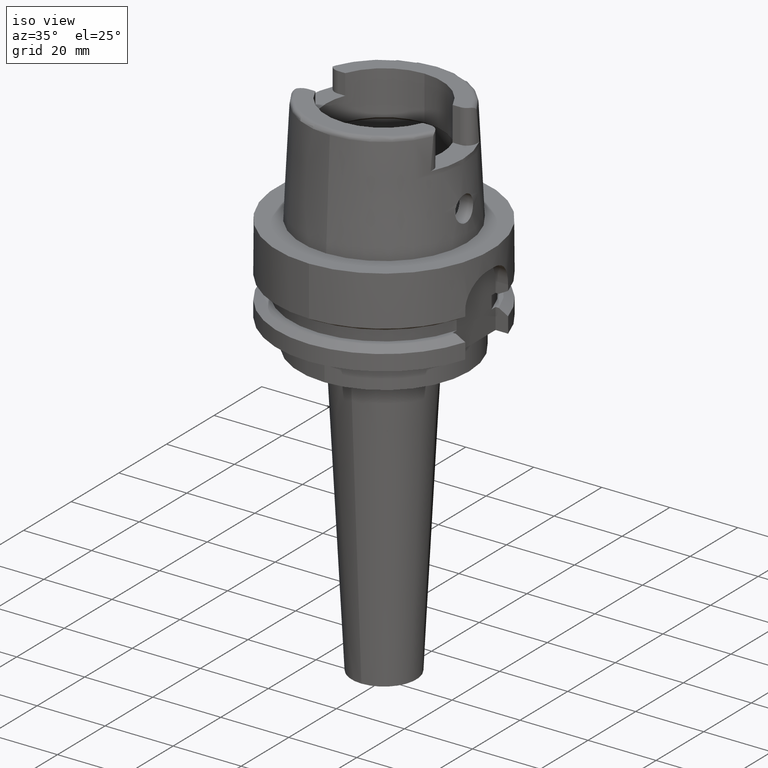
[diagram: clean part render]
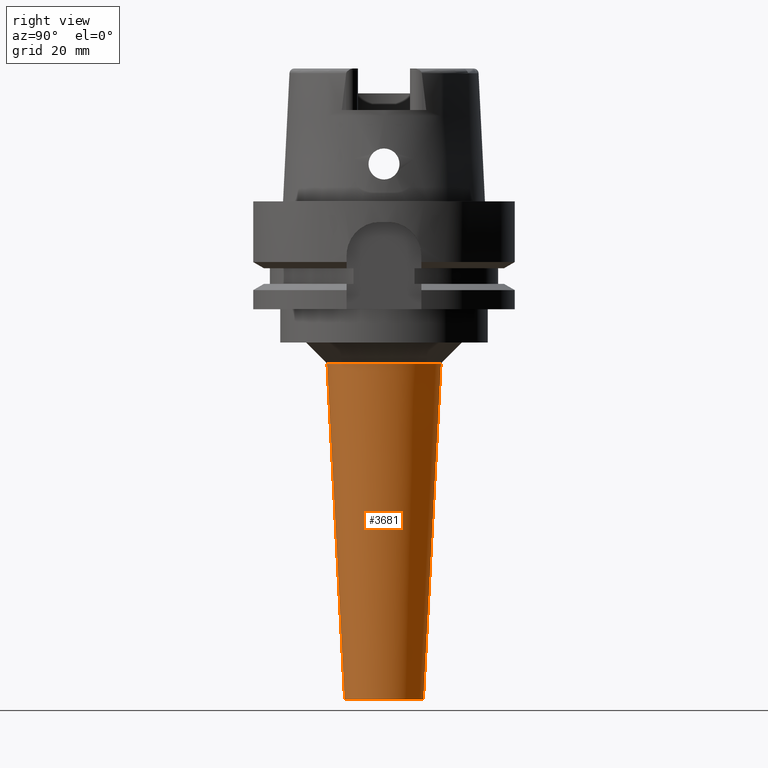
[diagram: tour spotlight — one face highlighted and labeled with its STEP entity id]
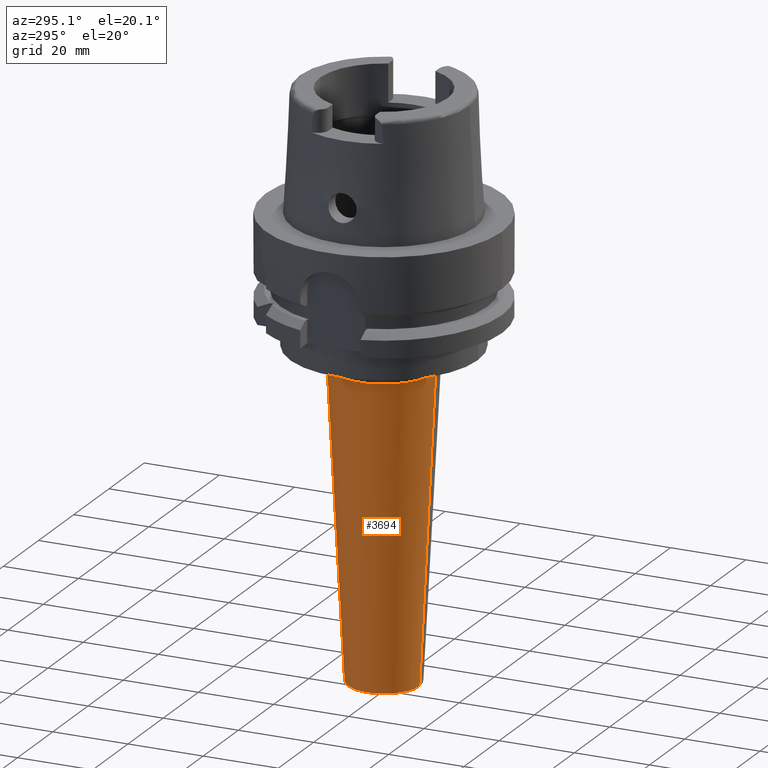
[diagram: tour spotlight — one face highlighted and labeled with its STEP entity id]
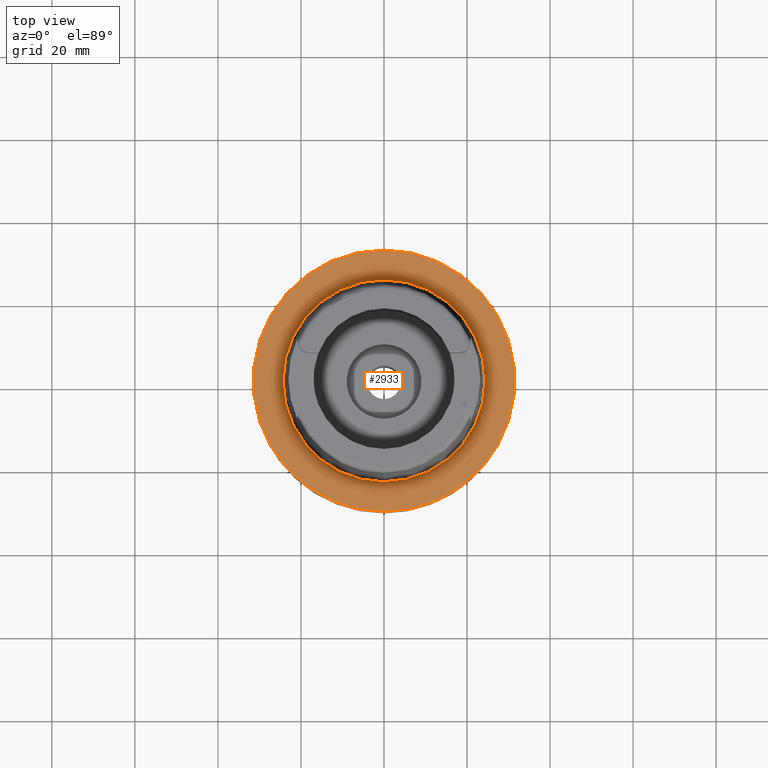
[diagram: tour spotlight — one face highlighted and labeled with its STEP entity id]
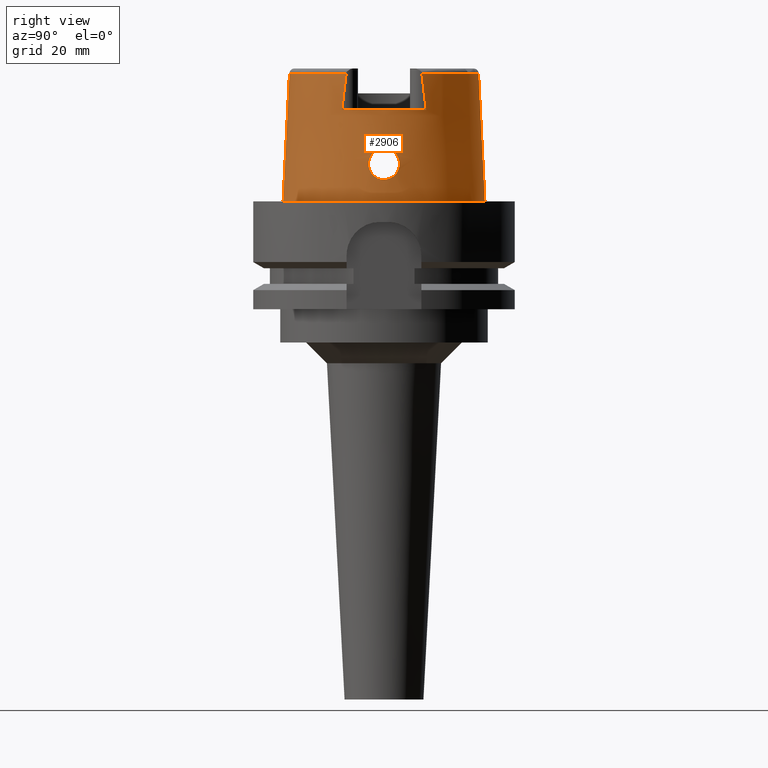
[diagram: tour spotlight — one face highlighted and labeled with its STEP entity id]
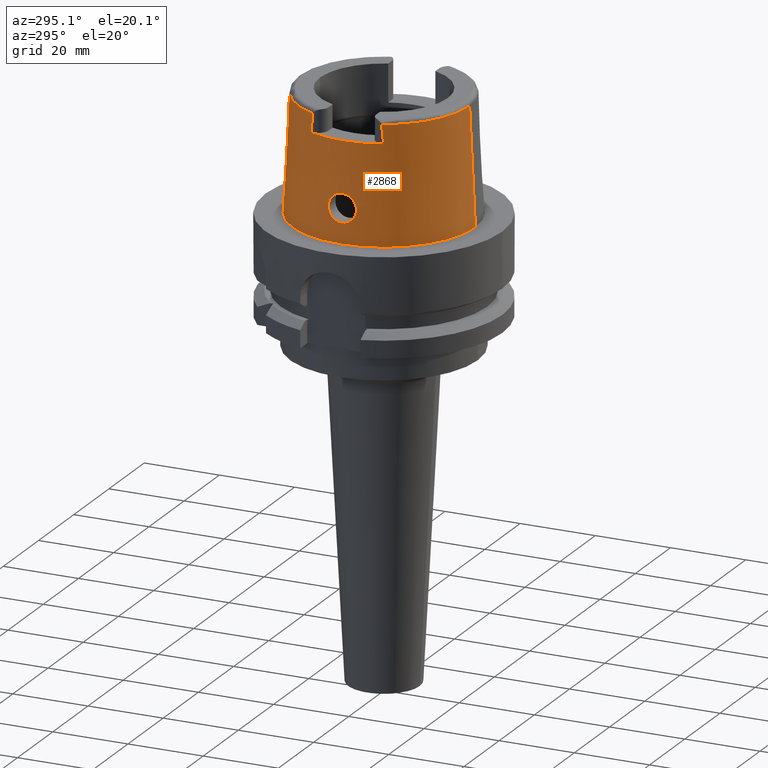
[diagram: tour spotlight — one face highlighted and labeled with its STEP entity id]
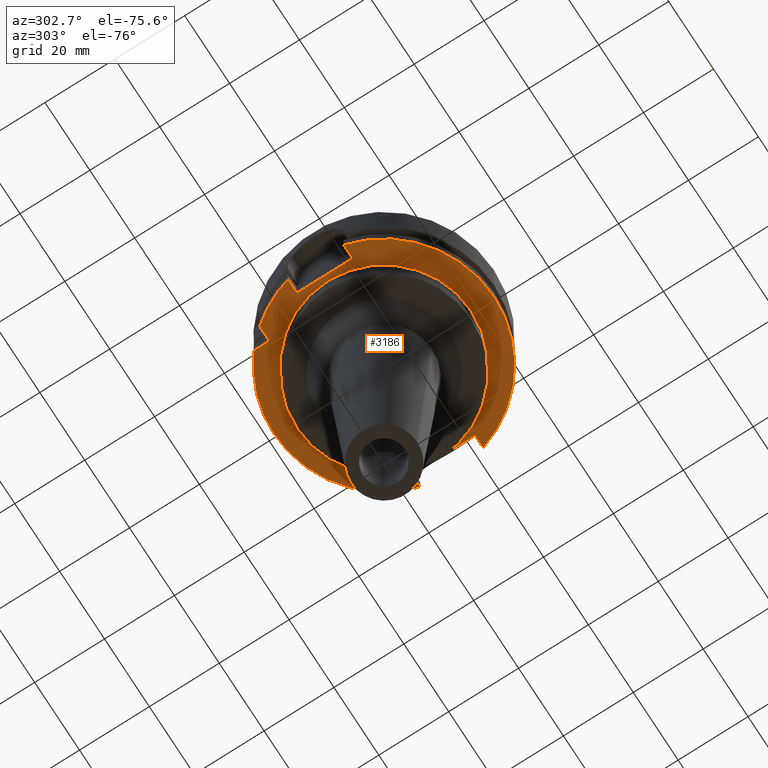
[diagram: tour spotlight — one face highlighted and labeled with its STEP entity id]
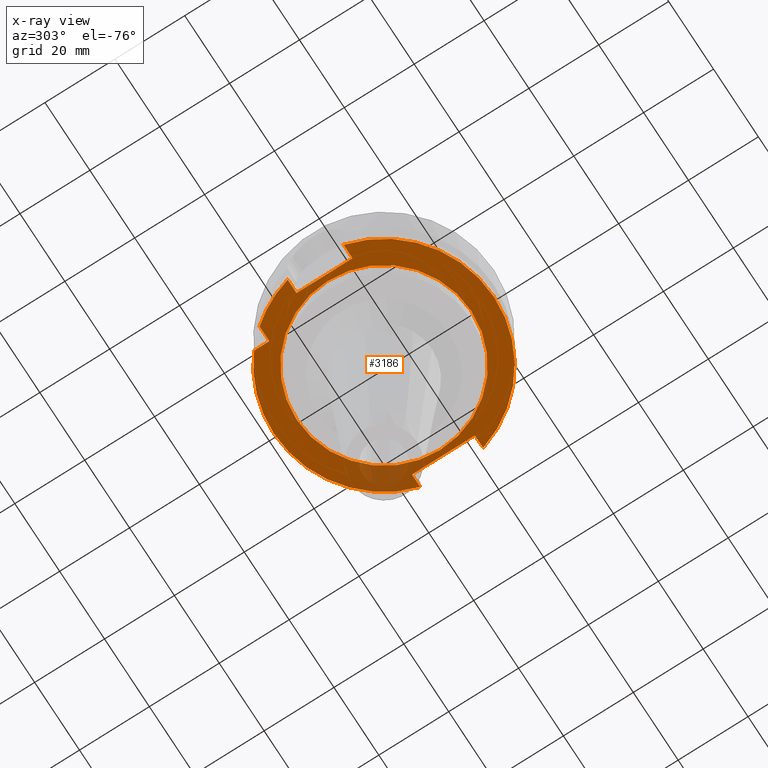
[diagram: x-ray of the same camera — body ghosted, this tour face saturated]
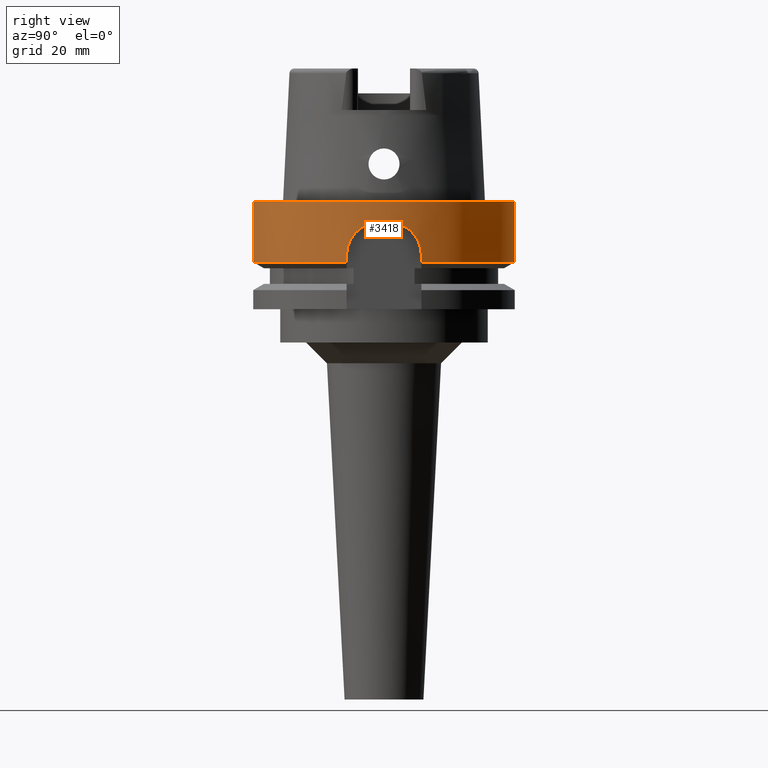
[diagram: tour spotlight — one face highlighted and labeled with its STEP entity id]
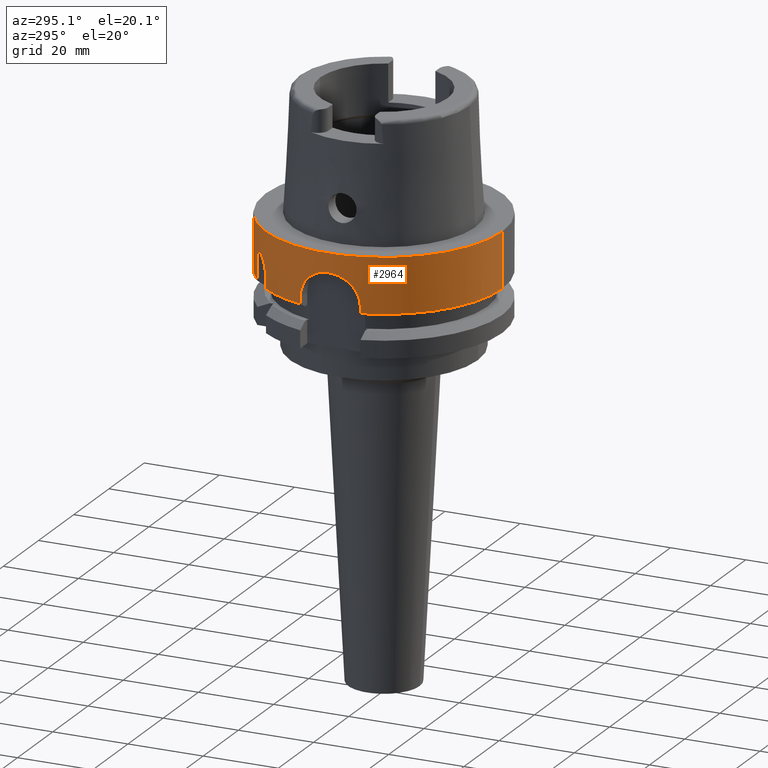
[diagram: tour spotlight — one face highlighted and labeled with its STEP entity id]
A machine part: a face-by-face anatomy tour. The part has 94 B-rep faces; the first image is the clean iso view, then the 8 largest visible faces are spotlighted one at a time (largest first), each with its STEP entity span.

Face 1 — right view, entity #3681. In plain terms, the highlighted conical surface has half-angle 3 deg.
Definition (entity closure, byte-faithful):
#1681=DIRECTION('',(0.E0,-5.233595624297E-2,-9.986295347546E-1));
#1682=VECTOR('',#1681,8.111116002583E1);
#1683=CARTESIAN_POINT('',(0.E0,1.374503012193E1,-3.9E1));
#1684=LINE('',#1683,#1682);
#1688=CARTESIAN_POINT('',(0.E0,0.E0,-3.9E1));
#1689=DIRECTION('',(0.E0,0.E0,1.E0));
#1690=DIRECTION('',(0.E0,-1.E0,0.E0));
#1691=AXIS2_PLACEMENT_3D('',#1688,#1689,#1690);
#1696=DIRECTION('',(0.E0,5.233595624297E-2,-9.986295347546E-1));
#1697=VECTOR('',#1696,8.111116002583E1);
#1698=CARTESIAN_POINT('',(0.E0,-1.374503012193E1,-3.9E1));
#1699=LINE('',#1698,#1697);
#1703=CARTESIAN_POINT('',(0.E0,0.E0,-1.2E2));
#1704=DIRECTION('',(0.E0,0.E0,1.E0));
#1705=DIRECTION('',(0.E0,-1.E0,0.E0));
#1706=AXIS2_PLACEMENT_3D('',#1703,#1704,#1705);
#2367=CARTESIAN_POINT('',(0.E0,-9.499999999997E0,-1.2E2));
#2368=CARTESIAN_POINT('',(0.E0,9.499999999997E0,-1.2E2));
#2369=VERTEX_POINT('',#2367);
#2370=VERTEX_POINT('',#2368);
#2371=CARTESIAN_POINT('',(0.E0,1.374503012193E1,-3.9E1));
#2372=VERTEX_POINT('',#2371);
#2373=CARTESIAN_POINT('',(0.E0,-1.374503012193E1,-3.9E1));
#2374=VERTEX_POINT('',#2373);
#3667=CARTESIAN_POINT('',(0.E0,0.E0,-7.95E1));
#3668=DIRECTION('',(0.E0,0.E0,1.E0));
#3669=DIRECTION('',(0.E0,1.E0,0.E0));
#3670=AXIS2_PLACEMENT_3D('',#3667,#3668,#3669);
#3671=CONICAL_SURFACE('',#3670,1.162251506096E1,3.E0);
#3673=ORIENTED_EDGE('',*,*,#3672,.T.);
#3675=ORIENTED_EDGE('',*,*,#3674,.F.);
#3677=ORIENTED_EDGE('',*,*,#3676,.F.);
#3678=ORIENTED_EDGE('',*,*,#3660,.T.);
#3679=EDGE_LOOP('',(#3673,#3675,#3677,#3678));
#3680=FACE_OUTER_BOUND('',#3679,.F.);
#1692=CIRCLE('',#1691,1.374503012192E1);
#1707=CIRCLE('',#1706,9.499999999997E0);
#3660=EDGE_CURVE('',#2374,#2372,#1692,.T.);
#3672=EDGE_CURVE('',#2372,#2370,#1684,.T.);
#3674=EDGE_CURVE('',#2369,#2370,#1707,.T.);
#3676=EDGE_CURVE('',#2374,#2369,#1699,.T.);
#3681=ADVANCED_FACE('',(#3680),#3671,.T.);

Face 2 — auxiliary view, entity #3694. In plain terms, the highlighted conical surface has half-angle 3 deg.
Definition (entity closure, byte-faithful):
#1666=CARTESIAN_POINT('',(0.E0,0.E0,-3.9E1));
#1667=DIRECTION('',(0.E0,0.E0,-1.E0));
#1668=DIRECTION('',(0.E0,-1.E0,0.E0));
#1669=AXIS2_PLACEMENT_3D('',#1666,#1667,#1668);
#1681=DIRECTION('',(0.E0,-5.233595624297E-2,-9.986295347546E-1));
#1682=VECTOR('',#1681,8.111116002583E1);
#1683=CARTESIAN_POINT('',(0.E0,1.374503012193E1,-3.9E1));
#1684=LINE('',#1683,#1682);
#1696=DIRECTION('',(0.E0,5.233595624297E-2,-9.986295347546E-1));
#1697=VECTOR('',#1696,8.111116002583E1);
#1698=CARTESIAN_POINT('',(0.E0,-1.374503012193E1,-3.9E1));
#1699=LINE('',#1698,#1697);
#1711=CARTESIAN_POINT('',(0.E0,0.E0,-1.2E2));
#1712=DIRECTION('',(0.E0,0.E0,1.E0));
#1713=DIRECTION('',(0.E0,1.E0,0.E0));
#1714=AXIS2_PLACEMENT_3D('',#1711,#1712,#1713);
#2367=CARTESIAN_POINT('',(0.E0,-9.499999999997E0,-1.2E2));
#2368=CARTESIAN_POINT('',(0.E0,9.499999999997E0,-1.2E2));
#2369=VERTEX_POINT('',#2367);
#2370=VERTEX_POINT('',#2368);
#2371=CARTESIAN_POINT('',(0.E0,1.374503012193E1,-3.9E1));
#2372=VERTEX_POINT('',#2371);
#2373=CARTESIAN_POINT('',(0.E0,-1.374503012193E1,-3.9E1));
#2374=VERTEX_POINT('',#2373);
#3682=CARTESIAN_POINT('',(0.E0,0.E0,-7.95E1));
#3683=DIRECTION('',(0.E0,0.E0,1.E0));
#3684=DIRECTION('',(0.E0,1.E0,0.E0));
#3685=AXIS2_PLACEMENT_3D('',#3682,#3683,#3684);
#3686=CONICAL_SURFACE('',#3685,1.162251506096E1,3.E0);
#3687=ORIENTED_EDGE('',*,*,#3672,.F.);
#3688=ORIENTED_EDGE('',*,*,#3649,.F.);
#3689=ORIENTED_EDGE('',*,*,#3676,.T.);
#3691=ORIENTED_EDGE('',*,*,#3690,.F.);
#3692=EDGE_LOOP('',(#3687,#3688,#3689,#3691));
#3693=FACE_OUTER_BOUND('',#3692,.F.);
#1670=CIRCLE('',#1669,1.374503012193E1);
#1715=CIRCLE('',#1714,9.499999999997E0);
#3649=EDGE_CURVE('',#2374,#2372,#1670,.T.);
#3672=EDGE_CURVE('',#2372,#2370,#1684,.T.);
#3676=EDGE_CURVE('',#2374,#2369,#1699,.T.);
#3690=EDGE_CURVE('',#2370,#2369,#1715,.T.);
#3694=ADVANCED_FACE('',(#3693),#3686,.T.);

Face 3 — top view, entity #2933. In plain terms, the highlighted planar face has unit normal (0, 0, 1).
Definition (entity closure, byte-faithful):
#618=CARTESIAN_POINT('',(0.E0,0.E0,3.410605131648E-13));
#619=DIRECTION('',(0.E0,0.E0,-1.E0));
#620=DIRECTION('',(0.E0,-1.E0,0.E0));
#621=AXIS2_PLACEMENT_3D('',#618,#619,#620);
#626=CARTESIAN_POINT('',(0.E0,0.E0,3.410605131648E-13));
#627=DIRECTION('',(0.E0,0.E0,-1.E0));
#628=DIRECTION('',(0.E0,1.E0,0.E0));
#629=AXIS2_PLACEMENT_3D('',#626,#627,#628);
#634=CARTESIAN_POINT('',(0.E0,0.E0,-7.389644451905E-13));
#635=DIRECTION('',(0.E0,0.E0,1.E0));
#636=DIRECTION('',(0.E0,-1.E0,0.E0));
#637=AXIS2_PLACEMENT_3D('',#634,#635,#636);
#642=CARTESIAN_POINT('',(0.E0,0.E0,-7.389644451905E-13));
#643=DIRECTION('',(0.E0,0.E0,1.E0));
#644=DIRECTION('',(0.E0,1.E0,0.E0));
#645=AXIS2_PLACEMENT_3D('',#642,#643,#644);
#2279=CARTESIAN_POINT('',(0.E0,-2.431503482329E1,-3.801403636317E-13));
#2280=VERTEX_POINT('',#2279);
#2281=CARTESIAN_POINT('',(0.E0,2.431503482329E1,-7.389644451905E-13));
#2282=VERTEX_POINT('',#2281);
#2536=CARTESIAN_POINT('',(0.E0,3.15E1,1.894780628694E-13));
#2537=VERTEX_POINT('',#2536);
#2538=CARTESIAN_POINT('',(0.E0,-3.15E1,3.410605131648E-13));
#2539=VERTEX_POINT('',#2538);
#2918=CARTESIAN_POINT('',(0.E0,0.E0,0.E0));
#2919=DIRECTION('',(0.E0,0.E0,1.E0));
#2920=DIRECTION('',(0.E0,1.E0,0.E0));
#2921=AXIS2_PLACEMENT_3D('',#2918,#2919,#2920);
#2922=PLANE('',#2921);
#2924=ORIENTED_EDGE('',*,*,#2923,.T.);
#2926=ORIENTED_EDGE('',*,*,#2925,.T.);
#2927=EDGE_LOOP('',(#2924,#2926));
#2928=FACE_OUTER_BOUND('',#2927,.F.);
#2929=ORIENTED_EDGE('',*,*,#2891,.T.);
#2930=ORIENTED_EDGE('',*,*,#2853,.T.);
#2931=EDGE_LOOP('',(#2929,#2930));
#2932=FACE_BOUND('',#2931,.F.);
#622=CIRCLE('',#621,3.15E1);
#630=CIRCLE('',#629,3.15E1);
#638=CIRCLE('',#637,2.431503482329E1);
#646=CIRCLE('',#645,2.431503482329E1);
#2853=EDGE_CURVE('',#2282,#2280,#646,.T.);
#2891=EDGE_CURVE('',#2280,#2282,#638,.T.);
#2923=EDGE_CURVE('',#2539,#2537,#622,.T.);
#2925=EDGE_CURVE('',#2537,#2539,#630,.T.);
#2933=ADVANCED_FACE('',(#2928,#2932),#2922,.T.);

Face 4 — right view, entity #2906. In plain terms, the highlighted conical surface has half-angle 2.862 deg.
Definition (entity closure, byte-faithful):
#238=CARTESIAN_POINT('',(2.086974110889E1,-9.111383544988E0,3.085992740154E1));
#243=CARTESIAN_POINT('',(0.E0,0.E0,3.085992712280E1));
#244=DIRECTION('',(0.E0,0.E0,-1.E0));
#245=DIRECTION('',(9.164655183266E-1,-4.001136759952E-1,0.E0));
#246=AXIS2_PLACEMENT_3D('',#243,#244,#245);
#331=CARTESIAN_POINT('',(0.E0,0.E0,2.2E1));
#332=DIRECTION('',(0.E0,0.E0,-1.E0));
#333=DIRECTION('',(8.989877876695E-1,4.379736951247E-1,0.E0));
#334=AXIS2_PLACEMENT_3D('',#331,#332,#333);
#408=CARTESIAN_POINT('',(0.E0,0.E0,3.085992712280E1));
#409=DIRECTION('',(0.E0,0.E0,-1.E0));
#410=DIRECTION('',(0.E0,1.E0,0.E0));
#411=AXIS2_PLACEMENT_3D('',#408,#409,#410);
#468=DIRECTION('',(8.032179027582E-5,-4.993928193351E-2,-9.987522523971E-1));
#469=VECTOR('',#468,3.089848062794E1);
#470=CARTESIAN_POINT('',(-2.481821280836E-3,-2.277198688789E1,
3.085992712280E1));
#471=LINE('',#470,#469);
#533=CARTESIAN_POINT('',(2.086999606042E1,1.016757672286E1,2.2E1));
#534=CARTESIAN_POINT('',(2.086999606042E1,1.005830459083E1,2.295713692900E1));
#535=CARTESIAN_POINT('',(2.087000073898E1,9.837693731168E0,2.486635586676E1));
#536=CARTESIAN_POINT('',(2.087000332294E1,9.498302441447E0,2.771500404696E1));
#537=CARTESIAN_POINT('',(2.086999175382E1,9.267368850798E0,2.960362234661E1));
#538=CARTESIAN_POINT('',(2.086999175382E1,9.150018522240E0,3.054599590786E1));
#543=CARTESIAN_POINT('',(2.086999175382E1,9.150018522240E0,3.054599590786E1));
#544=CARTESIAN_POINT('',(2.086999175382E1,9.145671884311E0,3.058090127809E1));
#545=CARTESIAN_POINT('',(2.086998416656E1,9.136990373322E0,3.065018241733E1));
#546=CARTESIAN_POINT('',(2.086989220690E1,9.124128539205E0,3.075517018047E1));
#547=CARTESIAN_POINT('',(2.086979784206E1,9.115619992019E0,3.082498881674E1));
#548=CARTESIAN_POINT('',(2.086974104061E1,9.111384044671E0,3.085992600054E1));
#553=DIRECTION('',(-8.032179027593E-5,4.993928193351E-2,-9.987522523971E-1));
#554=VECTOR('',#553,3.089848062794E1);
#555=CARTESIAN_POINT('',(2.481821280840E-3,2.277198688789E1,3.085992712280E1));
#556=LINE('',#555,#554);
#560=CARTESIAN_POINT('',(2.086974110889E1,-9.111383544988E0,3.085992740154E1));
#561=CARTESIAN_POINT('',(2.086979791523E1,-9.115619747689E0,3.082498808655E1));
#562=CARTESIAN_POINT('',(2.086989359503E1,-9.124126100485E0,3.075510751746E1));
#563=CARTESIAN_POINT('',(2.086997922485E1,-9.137002228671E0,3.065040319037E1));
#564=CARTESIAN_POINT('',(2.087000236792E1,-9.145647815676E0,3.058042815478E1));
#565=CARTESIAN_POINT('',(2.087000236792E1,-9.149994681381E0,3.054552122895E1));
#570=CARTESIAN_POINT('',(2.087000236792E1,-9.149994681381E0,3.054552122895E1));
#571=CARTESIAN_POINT('',(2.087000236792E1,-9.267237586258E0,2.960401770380E1));
#572=CARTESIAN_POINT('',(2.087000130158E1,-9.498473773453E0,2.771533041693E1));
#573=CARTESIAN_POINT('',(2.086999189259E1,-9.837864426117E0,2.486682029449E1));
#574=CARTESIAN_POINT('',(2.087001804958E1,-1.005818307170E1,2.295730285027E1));
#575=CARTESIAN_POINT('',(2.087001804958E1,-1.016747560172E1,2.2E1));
#580=CARTESIAN_POINT('',(2.367751368058E1,0.E0,1.275E1));
#581=CARTESIAN_POINT('',(2.367751368058E1,-3.273385166353E-1,1.275E1));
#582=CARTESIAN_POINT('',(2.366793739611E1,-9.825578415749E-1,1.266377520115E1));
#583=CARTESIAN_POINT('',(2.362981187385E1,-1.900011943677E0,1.228336346600E1));
#584=CARTESIAN_POINT('',(2.358191464843E1,-2.688103612006E0,1.167637135930E1));
#585=CARTESIAN_POINT('',(2.354357325824E1,-3.288821819792E0,1.088964615960E1));
#586=CARTESIAN_POINT('',(2.353292970101E1,-3.664996246160E0,9.975433437987E0));
#587=CARTESIAN_POINT('',(2.356155056667E1,-3.792201675265E0,9.003320277919E0));
#588=CARTESIAN_POINT('',(2.363132646140E1,-3.666190662775E0,8.028242756980E0));
#589=CARTESIAN_POINT('',(2.373410816693E1,-3.290345154405E0,7.112700953073E0));
#590=CARTESIAN_POINT('',(2.385148627792E1,-2.687575013186E0,6.322334536409E0));
#591=CARTESIAN_POINT('',(2.395990467095E1,-1.893937665800E0,5.712776965776E0));
#592=CARTESIAN_POINT('',(2.403486396305E1,-9.758430369737E-1,5.334736581590E0));
#593=CARTESIAN_POINT('',(2.405252611747E1,-3.244503059680E-1,5.25E0));
#594=CARTESIAN_POINT('',(2.405252611747E1,0.E0,5.25E0));
#599=CARTESIAN_POINT('',(2.405252611747E1,0.E0,5.25E0));
#600=CARTESIAN_POINT('',(2.405252611747E1,3.241919770980E-1,5.25E0));
#601=CARTESIAN_POINT('',(2.403484405509E1,9.733368598651E-1,5.334871576657E0));
#602=CARTESIAN_POINT('',(2.396118719106E1,1.880400859680E0,5.706266427877E0));
#603=CARTESIAN_POINT('',(2.385421018931E1,2.670830412544E0,6.306103450421E0));
#604=CARTESIAN_POINT('',(2.373660317905E1,3.279839280814E0,7.093351887860E0));
#605=CARTESIAN_POINT('',(2.363225113587E1,3.664170079434E0,8.016597200245E0));
#606=CARTESIAN_POINT('',(2.356145067359E1,3.793008602030E0,9.002656705615E0));
#607=CARTESIAN_POINT('',(2.353285683294E1,3.663794086830E0,9.980785517307E0));
#608=CARTESIAN_POINT('',(2.354373581532E1,3.286378123550E0,1.089302997587E1));
#609=CARTESIAN_POINT('',(2.358182946344E1,2.689291444687E0,1.167450189487E1));
#610=CARTESIAN_POINT('',(2.362959251261E1,1.904101539399E0,1.228103240625E1));
#611=CARTESIAN_POINT('',(2.366788493433E1,9.851087782521E-1,1.266332345074E1));
#612=CARTESIAN_POINT('',(2.367751368058E1,3.283688739533E-1,1.275E1));
#613=CARTESIAN_POINT('',(2.367751368058E1,0.E0,1.275E1));
#634=CARTESIAN_POINT('',(0.E0,0.E0,-7.389644451905E-13));
#635=DIRECTION('',(0.E0,0.E0,1.E0));
#636=DIRECTION('',(0.E0,-1.E0,0.E0));
#637=AXIS2_PLACEMENT_3D('',#634,#635,#636);
#2270=CARTESIAN_POINT('',(0.E0,2.277198729362E1,3.085992712280E1));
#2271=VERTEX_POINT('',#2270);
#2272=CARTESIAN_POINT('',(2.086974092012E1,9.111384045666E0,3.085992712280E1));
#2273=VERTEX_POINT('',#2272);
#2274=VERTEX_POINT('',#238);
#2275=CARTESIAN_POINT('',(0.E0,-2.277198729362E1,3.085992712280E1));
#2276=VERTEX_POINT('',#2275);
#2279=CARTESIAN_POINT('',(0.E0,-2.431503482329E1,-3.801403636317E-13));
#2280=VERTEX_POINT('',#2279);
#2281=CARTESIAN_POINT('',(0.E0,2.431503482329E1,-7.389644451905E-13));
#2282=VERTEX_POINT('',#2281);
#2285=CARTESIAN_POINT('',(2.087E1,1.016755860605E1,2.2E1));
#2286=CARTESIAN_POINT('',(2.087E1,-1.016755860605E1,2.2E1));
#2287=VERTEX_POINT('',#2285);
#2288=VERTEX_POINT('',#2286);
#2289=VERTEX_POINT('',#538);
#2290=VERTEX_POINT('',#565);
#2291=VERTEX_POINT('',#580);
#2292=VERTEX_POINT('',#594);
#2880=CARTESIAN_POINT('',(0.E0,0.E0,1.542996356140E1));
#2881=DIRECTION('',(0.E0,0.E0,-1.E0));
#2882=DIRECTION('',(0.E0,-1.E0,0.E0));
#2883=AXIS2_PLACEMENT_3D('',#2880,#2881,#2882);
#2884=CONICAL_SURFACE('',#2883,2.354351105845E1,2.8625E0);
#2885=ORIENTED_EDGE('',*,*,#2758,.F.);
#2887=ORIENTED_EDGE('',*,*,#2886,.T.);
#2888=ORIENTED_EDGE('',*,*,#2788,.T.);
#2889=ORIENTED_EDGE('',*,*,#2806,.F.);
#2890=ORIENTED_EDGE('',*,*,#2855,.T.);
#2892=ORIENTED_EDGE('',*,*,#2891,.F.);
#2893=ORIENTED_EDGE('',*,*,#2851,.F.);
#2894=ORIENTED_EDGE('',*,*,#2688,.F.);
#2895=ORIENTED_EDGE('',*,*,#2707,.T.);
#2897=ORIENTED_EDGE('',*,*,#2896,.T.);
#2898=EDGE_LOOP('',(#2885,#2887,#2888,#2889,#2890,#2892,#2893,#2894,#2895,
#2897));
#2899=FACE_OUTER_BOUND('',#2898,.F.);
#2901=ORIENTED_EDGE('',*,*,#2900,.T.);
#2903=ORIENTED_EDGE('',*,*,#2902,.T.);
#2904=EDGE_LOOP('',(#2901,#2903));
#2905=FACE_BOUND('',#2904,.F.);
#247=CIRCLE('',#246,2.277198729362E1);
#335=CIRCLE('',#334,2.321499834175E1);
#412=CIRCLE('',#411,2.277198729362E1);
#539=B_SPLINE_CURVE_WITH_KNOTS('',3,(#533,#534,#535,#536,#537,#538),
.UNSPECIFIED.,.F.,.F.,(4,1,1,4),(0.E0,3.333333333333E-1,6.666666666667E-1,1.E0),
.UNSPECIFIED.);
#549=B_SPLINE_CURVE_WITH_KNOTS('',3,(#543,#544,#545,#546,#547,#548),
.UNSPECIFIED.,.F.,.F.,(4,1,1,4),(0.E0,3.333333333333E-1,6.666666666667E-1,1.E0),
.UNSPECIFIED.);
#566=B_SPLINE_CURVE_WITH_KNOTS('',3,(#560,#561,#562,#563,#564,#565),
.UNSPECIFIED.,.F.,.F.,(4,1,1,4),(0.E0,3.333333333333E-1,6.666666666667E-1,1.E0),
.UNSPECIFIED.);
#576=B_SPLINE_CURVE_WITH_KNOTS('',3,(#570,#571,#572,#573,#574,#575),
.UNSPECIFIED.,.F.,.F.,(4,1,1,4),(0.E0,3.333333333333E-1,6.666666666667E-1,1.E0),
.UNSPECIFIED.);
#595=B_SPLINE_CURVE_WITH_KNOTS('',3,(#580,#581,#582,#583,#584,#585,#586,#587,
#588,#589,#590,#591,#592,#593,#594),.UNSPECIFIED.,.F.,.F.,(4,1,1,1,1,1,1,1,1,1,
1,1,4),(0.E0,8.333333333333E-2,1.666666666667E-1,2.5E-1,3.333333333333E-1,
4.166666666667E-1,5.E-1,5.833333333333E-1,6.666666666667E-1,7.5E-1,
8.333333333333E-1,9.166666666667E-1,1.E0),.UNSPECIFIED.);
#614=B_SPLINE_CURVE_WITH_KNOTS('',3,(#599,#600,#601,#602,#603,#604,#605,#606,
#607,#608,#609,#610,#611,#612,#613),.UNSPECIFIED.,.F.,.F.,(4,1,1,1,1,1,1,1,1,1,
1,1,4),(0.E0,8.333333333333E-2,1.666666666667E-1,2.5E-1,3.333333333333E-1,
4.166666666667E-1,5.E-1,5.833333333333E-1,6.666666666667E-1,7.5E-1,
8.333333333333E-1,9.166666666667E-1,1.E0),.UNSPECIFIED.);
#638=CIRCLE('',#637,2.431503482329E1);
#2688=EDGE_CURVE('',#2274,#2276,#247,.T.);
#2707=EDGE_CURVE('',#2274,#2290,#566,.T.);
#2758=EDGE_CURVE('',#2287,#2288,#335,.T.);
#2788=EDGE_CURVE('',#2289,#2273,#549,.T.);
#2806=EDGE_CURVE('',#2271,#2273,#412,.T.);
#2851=EDGE_CURVE('',#2276,#2280,#471,.T.);
#2855=EDGE_CURVE('',#2271,#2282,#556,.T.);
#2886=EDGE_CURVE('',#2287,#2289,#539,.T.);
#2891=EDGE_CURVE('',#2280,#2282,#638,.T.);
#2896=EDGE_CURVE('',#2290,#2288,#576,.T.);
#2900=EDGE_CURVE('',#2291,#2292,#595,.T.);
#2902=EDGE_CURVE('',#2292,#2291,#614,.T.);
#2906=ADVANCED_FACE('',(#2899,#2905),#2884,.T.);

Face 5 — auxiliary view, entity #2868. In plain terms, the highlighted conical surface has half-angle 2.862 deg.
Definition (entity closure, byte-faithful):
#116=CARTESIAN_POINT('',(0.E0,0.E0,2.6E1));
#117=DIRECTION('',(0.E0,0.E0,-1.E0));
#118=DIRECTION('',(-9.068002397791E-1,-4.215605829967E-1,0.E0));
#119=AXIS2_PLACEMENT_3D('',#116,#117,#118);
#207=CARTESIAN_POINT('',(-2.086974104061E1,-9.111384044678E0,3.085992600048E1));
#251=CARTESIAN_POINT('',(0.E0,0.E0,3.085992712280E1));
#252=DIRECTION('',(0.E0,0.E0,-1.E0));
#253=DIRECTION('',(0.E0,-1.E0,0.E0));
#254=AXIS2_PLACEMENT_3D('',#251,#252,#253);
#395=CARTESIAN_POINT('',(-2.086974110889E1,9.111383545002E0,3.085992740141E1));
#400=CARTESIAN_POINT('',(0.E0,0.E0,3.085992712280E1));
#401=DIRECTION('',(0.E0,0.E0,-1.E0));
#402=DIRECTION('',(-9.164655183266E-1,4.001136759952E-1,0.E0));
#403=AXIS2_PLACEMENT_3D('',#400,#401,#402);
#448=CARTESIAN_POINT('',(-2.086999931535E1,-9.702216590561E0,2.6E1));
#449=CARTESIAN_POINT('',(-2.086999931535E1,-9.642048820361E0,2.650727061302E1));
#450=CARTESIAN_POINT('',(-2.087000013188E1,-9.520999784311E0,2.752034962291E1));
#451=CARTESIAN_POINT('',(-2.087000056538E1,-9.336893546791E0,2.903557629453E1));
#452=CARTESIAN_POINT('',(-2.086999859286E1,-9.212633972085E0,3.004273962856E1));
#453=CARTESIAN_POINT('',(-2.086999859286E1,-9.150003160547E0,3.054568941686E1));
#458=CARTESIAN_POINT('',(-2.086999859286E1,-9.150003160547E0,3.054568941686E1));
#459=CARTESIAN_POINT('',(-2.086999859286E1,-9.145656550786E0,3.058059438465E1));
#460=CARTESIAN_POINT('',(-2.086998097501E1,-9.136997528955E0,3.065032563437E1));
#461=CARTESIAN_POINT('',(-2.086989311877E1,-9.124126494727E0,3.075512926140E1));
#462=CARTESIAN_POINT('',(-2.086979784206E1,-9.115619992012E0,3.082498881681E1));
#463=CARTESIAN_POINT('',(-2.086974104061E1,-9.111384044678E0,3.085992600048E1));
#468=DIRECTION('',(8.032179027582E-5,-4.993928193351E-2,-9.987522523971E-1));
#469=VECTOR('',#468,3.089848062794E1);
#470=CARTESIAN_POINT('',(-2.481821280836E-3,-2.277198688789E1,
3.085992712280E1));
#471=LINE('',#470,#469);
#475=CARTESIAN_POINT('',(-2.086974110889E1,9.111383545002E0,3.085992740141E1));
#476=CARTESIAN_POINT('',(-2.086979791523E1,9.115619747676E0,3.082498808665E1));
#477=CARTESIAN_POINT('',(-2.086989333338E1,9.124126689012E0,3.075511924132E1));
#478=CARTESIAN_POINT('',(-2.086998014065E1,9.137000168781E0,3.065036215719E1));
#479=CARTESIAN_POINT('',(-2.087000040551E1,9.145652229693E0,3.058051608329E1));
#480=CARTESIAN_POINT('',(-2.087000040551E1,9.149999089201E0,3.054560915664E1));
#485=CARTESIAN_POINT('',(-2.087000040551E1,9.149999089201E0,3.054560915664E1));
#486=CARTESIAN_POINT('',(-2.087000040551E1,9.212612082852E0,3.004280312577E1));
#487=CARTESIAN_POINT('',(-2.087000020370E1,9.336923098287E0,2.903562847774E1));
#488=CARTESIAN_POINT('',(-2.086999867880E1,9.521029051541E0,2.752042416354E1));
#489=CARTESIAN_POINT('',(-2.087000294700E1,9.642028220330E0,2.650729690937E1));
#490=CARTESIAN_POINT('',(-2.087000294700E1,9.702199254904E0,2.6E1));
#495=CARTESIAN_POINT('',(-2.405252611747E1,7.219293415728E-14,5.25E0));
#496=CARTESIAN_POINT('',(-2.405252611747E1,-3.241869746E-1,5.25E0));
#497=CARTESIAN_POINT('',(-2.403484461044E1,-9.733222430590E-1,
5.334868901475E0));
#498=CARTESIAN_POINT('',(-2.396118973635E1,-1.880375352264E0,5.706253445513E0));
#499=CARTESIAN_POINT('',(-2.385421498837E1,-2.670800980719E0,6.306074556238E0));
#500=CARTESIAN_POINT('',(-2.373660725434E1,-3.279821761220E0,7.093321026556E0));
#501=CARTESIAN_POINT('',(-2.363225409826E1,-3.664161909827E0,8.016564221292E0));
#502=CARTESIAN_POINT('',(-2.356145186668E1,-3.793008677316E0,9.002632912190E0));
#503=CARTESIAN_POINT('',(-2.353285715397E1,-3.663802011440E0,9.980754356295E0));
#504=CARTESIAN_POINT('',(-2.354373497458E1,-3.286393023203E0,1.089300407555E1));
#505=CARTESIAN_POINT('',(-2.358182791375E1,-2.689315101460E0,1.167447830369E1));
#506=CARTESIAN_POINT('',(-2.362959140874E1,-1.904123067068E0,1.228102099175E1));
#507=CARTESIAN_POINT('',(-2.366788460884E1,-9.851234765923E-1,
1.266332049082E1));
#508=CARTESIAN_POINT('',(-2.367751368058E1,-3.283741908794E-1,1.275E1));
#509=CARTESIAN_POINT('',(-2.367751368058E1,0.E0,1.275E1));
#514=CARTESIAN_POINT('',(-2.367751368058E1,0.E0,1.275E1));
#515=CARTESIAN_POINT('',(-2.367751368058E1,3.273322439747E-1,1.275E1));
#516=CARTESIAN_POINT('',(-2.366793776223E1,9.825397932621E-1,1.266377848528E1));
#517=CARTESIAN_POINT('',(-2.362981346507E1,1.899980570422E0,1.228337985849E1));
#518=CARTESIAN_POINT('',(-2.358191685803E1,2.688069988412E0,1.167640504162E1));
#519=CARTESIAN_POINT('',(-2.354357443606E1,3.288800883550E0,1.088968257777E1));
#520=CARTESIAN_POINT('',(-2.353292925785E1,3.664984661832E0,9.975478484618E0));
#521=CARTESIAN_POINT('',(-2.356154877331E1,3.792202364372E0,9.003353484188E0));
#522=CARTESIAN_POINT('',(-2.363132347814E1,3.666199331519E0,8.028274762223E0));
#523=CARTESIAN_POINT('',(-2.373410501307E1,3.290358863245E0,7.112724654092E0));
#524=CARTESIAN_POINT('',(-2.385148275873E1,2.687596494324E0,6.322355826967E0));
#525=CARTESIAN_POINT('',(-2.395990280334E1,1.893956061351E0,5.712786499387E0));
#526=CARTESIAN_POINT('',(-2.403486346259E1,9.758552393201E-1,5.334739007395E0));
#527=CARTESIAN_POINT('',(-2.405252611747E1,3.244546408726E-1,5.25E0));
#528=CARTESIAN_POINT('',(-2.405252611747E1,7.219293415728E-14,5.25E0));
#553=DIRECTION('',(-8.032179027593E-5,4.993928193351E-2,-9.987522523971E-1));
#554=VECTOR('',#553,3.089848062794E1);
#555=CARTESIAN_POINT('',(2.481821280840E-3,2.277198688789E1,3.085992712280E1));
#556=LINE('',#555,#554);
#642=CARTESIAN_POINT('',(0.E0,0.E0,-7.389644451905E-13));
#643=DIRECTION('',(0.E0,0.E0,1.E0));
#644=DIRECTION('',(0.E0,1.E0,0.E0));
#645=AXIS2_PLACEMENT_3D('',#642,#643,#644);
#2261=CARTESIAN_POINT('',(-2.086999931535E1,-9.702216590561E0,2.6E1));
#2262=VERTEX_POINT('',#2261);
#2263=CARTESIAN_POINT('',(-2.087E1,9.702213322399E0,2.6E1));
#2264=VERTEX_POINT('',#2263);
#2267=VERTEX_POINT('',#207);
#2268=VERTEX_POINT('',#458);
#2269=VERTEX_POINT('',#395);
#2270=CARTESIAN_POINT('',(0.E0,2.277198729362E1,3.085992712280E1));
#2271=VERTEX_POINT('',#2270);
#2275=CARTESIAN_POINT('',(0.E0,-2.277198729362E1,3.085992712280E1));
#2276=VERTEX_POINT('',#2275);
#2277=CARTESIAN_POINT('',(-2.087000040551E1,9.149999089201E0,3.054560915664E1));
#2278=VERTEX_POINT('',#2277);
#2279=CARTESIAN_POINT('',(0.E0,-2.431503482329E1,-3.801403636317E-13));
#2280=VERTEX_POINT('',#2279);
#2281=CARTESIAN_POINT('',(0.E0,2.431503482329E1,-7.389644451905E-13));
#2282=VERTEX_POINT('',#2281);
#2283=VERTEX_POINT('',#495);
#2284=VERTEX_POINT('',#509);
#2841=CARTESIAN_POINT('',(0.E0,0.E0,1.542996356140E1));
#2842=DIRECTION('',(0.E0,0.E0,-1.E0));
#2843=DIRECTION('',(0.E0,-1.E0,0.E0));
#2844=AXIS2_PLACEMENT_3D('',#2841,#2842,#2843);
#2845=CONICAL_SURFACE('',#2844,2.354351105845E1,2.8625E0);
#2846=ORIENTED_EDGE('',*,*,#2618,.F.);
#2848=ORIENTED_EDGE('',*,*,#2847,.T.);
#2849=ORIENTED_EDGE('',*,*,#2670,.T.);
#2850=ORIENTED_EDGE('',*,*,#2690,.F.);
#2852=ORIENTED_EDGE('',*,*,#2851,.T.);
#2854=ORIENTED_EDGE('',*,*,#2853,.F.);
#2856=ORIENTED_EDGE('',*,*,#2855,.F.);
#2857=ORIENTED_EDGE('',*,*,#2804,.F.);
#2858=ORIENTED_EDGE('',*,*,#2823,.T.);
#2859=ORIENTED_EDGE('',*,*,#2834,.T.);
#2860=EDGE_LOOP('',(#2846,#2848,#2849,#2850,#2852,#2854,#2856,#2857,#2858,
#2859));
#2861=FACE_OUTER_BOUND('',#2860,.F.);
#2863=ORIENTED_EDGE('',*,*,#2862,.T.);
#2865=ORIENTED_EDGE('',*,*,#2864,.T.);
#2866=EDGE_LOOP('',(#2863,#2865));
#2867=FACE_BOUND('',#2866,.F.);
#120=CIRCLE('',#119,2.301499170874E1);
#255=CIRCLE('',#254,2.277198729362E1);
#404=CIRCLE('',#403,2.277198729362E1);
#454=B_SPLINE_CURVE_WITH_KNOTS('',3,(#448,#449,#450,#451,#452,#453),
.UNSPECIFIED.,.F.,.F.,(4,1,1,4),(0.E0,3.333333333333E-1,6.666666666667E-1,1.E0),
.UNSPECIFIED.);
#464=B_SPLINE_CURVE_WITH_KNOTS('',3,(#458,#459,#460,#461,#462,#463),
.UNSPECIFIED.,.F.,.F.,(4,1,1,4),(0.E0,3.333333333333E-1,6.666666666667E-1,1.E0),
.UNSPECIFIED.);
#481=B_SPLINE_CURVE_WITH_KNOTS('',3,(#475,#476,#477,#478,#479,#480),
.UNSPECIFIED.,.F.,.F.,(4,1,1,4),(0.E0,3.333333333333E-1,6.666666666667E-1,1.E0),
.UNSPECIFIED.);
#491=B_SPLINE_CURVE_WITH_KNOTS('',3,(#485,#486,#487,#488,#489,#490),
.UNSPECIFIED.,.F.,.F.,(4,1,1,4),(0.E0,3.333333333333E-1,6.666666666667E-1,1.E0),
.UNSPECIFIED.);
#510=B_SPLINE_CURVE_WITH_KNOTS('',3,(#495,#496,#497,#498,#499,#500,#501,#502,
#503,#504,#505,#506,#507,#508,#509),.UNSPECIFIED.,.F.,.F.,(4,1,1,1,1,1,1,1,1,1,
1,1,4),(0.E0,8.333333333333E-2,1.666666666667E-1,2.5E-1,3.333333333333E-1,
4.166666666667E-1,5.E-1,5.833333333333E-1,6.666666666667E-1,7.5E-1,
8.333333333333E-1,9.166666666667E-1,1.E0),.UNSPECIFIED.);
#529=B_SPLINE_CURVE_WITH_KNOTS('',3,(#514,#515,#516,#517,#518,#519,#520,#521,
#522,#523,#524,#525,#526,#527,#528),.UNSPECIFIED.,.F.,.F.,(4,1,1,1,1,1,1,1,1,1,
1,1,4),(0.E0,8.333333333333E-2,1.666666666667E-1,2.5E-1,3.333333333333E-1,
4.166666666667E-1,5.E-1,5.833333333333E-1,6.666666666667E-1,7.5E-1,
8.333333333333E-1,9.166666666667E-1,1.E0),.UNSPECIFIED.);
#646=CIRCLE('',#645,2.431503482329E1);
#2618=EDGE_CURVE('',#2262,#2264,#120,.T.);
#2670=EDGE_CURVE('',#2268,#2267,#464,.T.);
#2690=EDGE_CURVE('',#2276,#2267,#255,.T.);
#2804=EDGE_CURVE('',#2269,#2271,#404,.T.);
#2823=EDGE_CURVE('',#2269,#2278,#481,.T.);
#2834=EDGE_CURVE('',#2278,#2264,#491,.T.);
#2847=EDGE_CURVE('',#2262,#2268,#454,.T.);
#2851=EDGE_CURVE('',#2276,#2280,#471,.T.);
#2853=EDGE_CURVE('',#2282,#2280,#646,.T.);
#2855=EDGE_CURVE('',#2271,#2282,#556,.T.);
#2862=EDGE_CURVE('',#2283,#2284,#510,.T.);
#2864=EDGE_CURVE('',#2284,#2283,#529,.T.);
#2868=ADVANCED_FACE('',(#2861,#2867),#2845,.T.);

Face 6 — auxiliary view, entity #3186. An x-ray twin of the same camera follows (body ghosted, this face saturated) — the face is partly hidden behind the body. In plain terms, the highlighted planar face has unit normal (0, 0, 1).
Definition (entity closure, byte-faithful):
#933=DIRECTION('',(0.E0,1.E0,0.E0));
#934=VECTOR('',#933,1.6E1);
#935=CARTESIAN_POINT('',(-2.65E1,-8.E0,-2.6E1));
#936=LINE('',#935,#934);
#970=DIRECTION('',(-1.E0,-1.540316790609E-13,0.E0));
#971=VECTOR('',#970,4.336187047278E0);
#972=CARTESIAN_POINT('',(-2.E1,2.E1,-2.6E1));
#973=LINE('',#972,#971);
#977=CARTESIAN_POINT('',(0.E0,0.E0,-2.6E1));
#978=DIRECTION('',(0.E0,0.E0,1.E0));
#979=DIRECTION('',(-7.725773665802E-1,6.349206349206E-1,0.E0));
#980=AXIS2_PLACEMENT_3D('',#977,#978,#979);
#985=DIRECTION('',(-1.E0,-8.686570378871E-14,0.E0));
#986=VECTOR('',#985,3.967195473163E0);
#987=CARTESIAN_POINT('',(-2.65E1,-8.E0,-2.6E1));
#988=LINE('',#987,#986);
#992=CARTESIAN_POINT('',(0.E0,0.E0,-2.6E1));
#993=DIRECTION('',(0.E0,0.E0,1.E0));
#994=DIRECTION('',(-9.672125547036E-1,-2.539682539683E-1,0.E0));
#995=AXIS2_PLACEMENT_3D('',#992,#993,#994);
#1000=CARTESIAN_POINT('',(0.E0,0.E0,-2.6E1));
#1001=DIRECTION('',(0.E0,0.E0,1.E0));
#1002=DIRECTION('',(0.E0,-1.E0,0.E0));
#1003=AXIS2_PLACEMENT_3D('',#1000,#1001,#1002);
#1008=DIRECTION('',(0.E0,1.E0,0.E0));
#1009=VECTOR('',#1008,1.8E1);
#1010=CARTESIAN_POINT('',(2.65E1,-9.E0,-2.6E1));
#1011=LINE('',#1010,#1009);
#1015=DIRECTION('',(1.E0,-7.275179563200E-14,0.E0));
#1016=VECTOR('',#1015,3.686917696248E0);
#1017=CARTESIAN_POINT('',(2.65E1,9.E0,-2.6E1));
#1018=LINE('',#1017,#1016);
#1022=CARTESIAN_POINT('',(0.E0,0.E0,-2.6E1));
#1023=DIRECTION('',(0.E0,0.E0,1.E0));
#1024=DIRECTION('',(9.583148474999E-1,2.857142857143E-1,0.E0));
#1025=AXIS2_PLACEMENT_3D('',#1022,#1023,#1024);
#1030=CARTESIAN_POINT('',(0.E0,0.E0,-2.6E1));
#1031=DIRECTION('',(0.E0,0.E0,1.E0));
#1032=DIRECTION('',(0.E0,1.E0,0.E0));
#1033=AXIS2_PLACEMENT_3D('',#1030,#1031,#1032);
#1038=CARTESIAN_POINT('',(0.E0,0.E0,-2.6E1));
#1039=DIRECTION('',(0.E0,0.E0,-1.E0));
#1040=DIRECTION('',(0.E0,-1.E0,0.E0));
#1041=AXIS2_PLACEMENT_3D('',#1038,#1039,#1040);
#1046=CARTESIAN_POINT('',(0.E0,0.E0,-2.6E1));
#1047=DIRECTION('',(0.E0,0.E0,-1.E0));
#1048=DIRECTION('',(0.E0,1.E0,0.E0));
#1049=AXIS2_PLACEMENT_3D('',#1046,#1047,#1048);
#1054=DIRECTION('',(1.556703139446E-13,1.E0,0.E0));
#1055=VECTOR('',#1054,4.336187047278E0);
#1056=CARTESIAN_POINT('',(-2.E1,2.E1,-2.6E1));
#1057=LINE('',#1056,#1055);
#1157=DIRECTION('',(1.E0,6.889739586341E-14,0.E0));
#1158=VECTOR('',#1157,3.686917696248E0);
#1159=CARTESIAN_POINT('',(2.65E1,-9.E0,-2.6E1));
#1160=LINE('',#1159,#1158);
#1543=DIRECTION('',(-1.E0,8.776122650818E-14,0.E0));
#1544=VECTOR('',#1543,3.967195473163E0);
#1545=CARTESIAN_POINT('',(-2.65E1,8.E0,-2.6E1));
#1546=LINE('',#1545,#1544);
#2383=CARTESIAN_POINT('',(0.E0,2.5E1,-2.6E1));
#2384=VERTEX_POINT('',#2383);
#2385=CARTESIAN_POINT('',(0.E0,-2.5E1,-2.6E1));
#2386=VERTEX_POINT('',#2385);
#2387=CARTESIAN_POINT('',(-2.E1,2.E1,-2.6E1));
#2388=CARTESIAN_POINT('',(-2.E1,2.433618704728E1,-2.6E1));
#2389=VERTEX_POINT('',#2387);
#2390=VERTEX_POINT('',#2388);
#2391=CARTESIAN_POINT('',(-2.433618704728E1,2.E1,-2.6E1));
#2392=VERTEX_POINT('',#2391);
#2393=CARTESIAN_POINT('',(-3.046719547316E1,8.E0,-2.6E1));
#2394=VERTEX_POINT('',#2393);
#2395=CARTESIAN_POINT('',(-2.65E1,8.E0,-2.6E1));
#2396=VERTEX_POINT('',#2395);
#2397=CARTESIAN_POINT('',(-2.65E1,-8.E0,-2.6E1));
#2398=VERTEX_POINT('',#2397);
#2399=CARTESIAN_POINT('',(-3.046719547316E1,-8.E0,-2.6E1));
#2400=VERTEX_POINT('',#2399);
#2401=CARTESIAN_POINT('',(-1.425430758458E-14,-3.15E1,-2.6E1));
#2402=CARTESIAN_POINT('',(3.018691769625E1,-9.E0,-2.6E1));
#2403=VERTEX_POINT('',#2401);
#2404=VERTEX_POINT('',#2402);
#2405=CARTESIAN_POINT('',(2.65E1,-9.E0,-2.6E1));
#2406=VERTEX_POINT('',#2405);
#2407=CARTESIAN_POINT('',(2.65E1,9.E0,-2.6E1));
#2408=VERTEX_POINT('',#2407);
#2409=CARTESIAN_POINT('',(3.018691769625E1,9.E0,-2.6E1));
#2410=VERTEX_POINT('',#2409);
#2411=CARTESIAN_POINT('',(0.E0,3.15E1,-2.6E1));
#2412=VERTEX_POINT('',#2411);
#3148=CARTESIAN_POINT('',(0.E0,0.E0,-2.6E1));
#3149=DIRECTION('',(0.E0,0.E0,1.E0));
#3150=DIRECTION('',(0.E0,1.E0,0.E0));
#3151=AXIS2_PLACEMENT_3D('',#3148,#3149,#3150);
#3152=PLANE('',#3151);
#3154=ORIENTED_EDGE('',*,*,#3153,.F.);
#3156=ORIENTED_EDGE('',*,*,#3155,.T.);
#3158=ORIENTED_EDGE('',*,*,#3157,.T.);
#3160=ORIENTED_EDGE('',*,*,#3159,.F.);
#3161=ORIENTED_EDGE('',*,*,#3125,.F.);
#3163=ORIENTED_EDGE('',*,*,#3162,.T.);
#3165=ORIENTED_EDGE('',*,*,#3164,.T.);
#3167=ORIENTED_EDGE('',*,*,#3166,.T.);
#3169=ORIENTED_EDGE('',*,*,#3168,.F.);
#3171=ORIENTED_EDGE('',*,*,#3170,.T.);
#3173=ORIENTED_EDGE('',*,*,#3172,.T.);
#3175=ORIENTED_EDGE('',*,*,#3174,.T.);
#3177=ORIENTED_EDGE('',*,*,#3176,.T.);
#3178=EDGE_LOOP('',(#3154,#3156,#3158,#3160,#3161,#3163,#3165,#3167,#3169,#3171,
#3173,#3175,#3177));
#3179=FACE_OUTER_BOUND('',#3178,.F.);
#3181=ORIENTED_EDGE('',*,*,#3180,.T.);
#3183=ORIENTED_EDGE('',*,*,#3182,.T.);
#3184=EDGE_LOOP('',(#3181,#3183));
#3185=FACE_BOUND('',#3184,.F.);
#981=CIRCLE('',#980,3.15E1);
#996=CIRCLE('',#995,3.15E1);
#1004=CIRCLE('',#1003,3.15E1);
#1026=CIRCLE('',#1025,3.15E1);
#1034=CIRCLE('',#1033,3.15E1);
#1042=CIRCLE('',#1041,2.5E1);
#1050=CIRCLE('',#1049,2.5E1);
#3125=EDGE_CURVE('',#2398,#2396,#936,.T.);
#3153=EDGE_CURVE('',#2389,#2390,#1057,.T.);
#3155=EDGE_CURVE('',#2389,#2392,#973,.T.);
#3157=EDGE_CURVE('',#2392,#2394,#981,.T.);
#3159=EDGE_CURVE('',#2396,#2394,#1546,.T.);
#3162=EDGE_CURVE('',#2398,#2400,#988,.T.);
#3164=EDGE_CURVE('',#2400,#2403,#996,.T.);
#3166=EDGE_CURVE('',#2403,#2404,#1004,.T.);
#3168=EDGE_CURVE('',#2406,#2404,#1160,.T.);
#3170=EDGE_CURVE('',#2406,#2408,#1011,.T.);
#3172=EDGE_CURVE('',#2408,#2410,#1018,.T.);
#3174=EDGE_CURVE('',#2410,#2412,#1026,.T.);
#3176=EDGE_CURVE('',#2412,#2390,#1034,.T.);
#3180=EDGE_CURVE('',#2386,#2384,#1042,.T.);
#3182=EDGE_CURVE('',#2384,#2386,#1050,.T.);
#3186=ADVANCED_FACE('',(#3179,#3185),#3152,.F.);

Face 7 — right view, entity #3418. In plain terms, the highlighted cylindrical surface (partial cylindrical patch) has radius 31.5 mm, axis along (0, 0, 1).
Definition (entity closure, byte-faithful):
#626=CARTESIAN_POINT('',(0.E0,0.E0,3.410605131648E-13));
#627=DIRECTION('',(0.E0,0.E0,-1.E0));
#628=DIRECTION('',(0.E0,1.E0,0.E0));
#629=AXIS2_PLACEMENT_3D('',#626,#627,#628);
#657=DIRECTION('',(0.E0,-2.672583210396E-14,-1.E0));
#658=VECTOR('',#657,1.462250092524E1);
#659=CARTESIAN_POINT('',(0.E0,-3.15E1,1.894780628694E-13));
#660=LINE('',#659,#658);
#1313=CARTESIAN_POINT('',(0.E0,0.E0,-1.462250092524E1));
#1314=DIRECTION('',(0.E0,0.E0,1.E0));
#1315=DIRECTION('',(0.E0,-1.E0,0.E0));
#1316=AXIS2_PLACEMENT_3D('',#1313,#1314,#1315);
#1321=CARTESIAN_POINT('',(3.018691773962E1,-8.999999854527E0,
-1.462250209851E1));
#1331=DIRECTION('',(1.272502465755E-7,-4.268091506413E-7,9.999999999999E-1));
#1332=VECTOR('',#1331,1.622495340012E0);
#1333=CARTESIAN_POINT('',(3.018691748979E1,9.000000692496E0,-1.462249534001E1));
#1334=LINE('',#1333,#1332);
#1338=CARTESIAN_POINT('',(3.018691769625E1,9.E0,-1.3E1));
#1339=CARTESIAN_POINT('',(3.018691769625E1,9.E0,-1.241192044246E1));
#1340=CARTESIAN_POINT('',(3.022458728510E1,8.875289756343E0,-1.125892253359E1));
#1341=CARTESIAN_POINT('',(3.039357297651E1,8.287848925069E0,-9.537932355537E0));
#1342=CARTESIAN_POINT('',(3.064072627143E1,7.337171348320E0,-8.008358270976E0));
#1343=CARTESIAN_POINT('',(3.092162270031E1,6.065228345862E0,-6.720433294446E0));
#1344=CARTESIAN_POINT('',(3.118756083941E1,4.530396778447E0,-5.743154363574E0));
#1345=CARTESIAN_POINT('',(3.139304788483E1,2.789432826227E0,-5.132903354510E0));
#1346=CARTESIAN_POINT('',(3.146487709602E1,1.605939868112E0,-5.E0));
#1347=CARTESIAN_POINT('',(3.148412298286E1,1.E0,-5.E0));
#1352=CARTESIAN_POINT('',(3.148412298286E1,-1.E0,-5.E0));
#1353=CARTESIAN_POINT('',(3.146532949681E1,-1.591696426269E0,-5.E0));
#1354=CARTESIAN_POINT('',(3.139581012128E1,-2.752619676070E0,
-5.126773188747E0));
#1355=CARTESIAN_POINT('',(3.119520174941E1,-4.476607823205E0,
-5.718420889006E0));
#1356=CARTESIAN_POINT('',(3.093174465896E1,-6.014174422856E0,
-6.679583030674E0));
#1357=CARTESIAN_POINT('',(3.064996772581E1,-7.299331081687E0,
-7.959872703530E0));
#1358=CARTESIAN_POINT('',(3.039933270185E1,-8.267303794651E0,
-9.491940593774E0));
#1359=CARTESIAN_POINT('',(3.022586282427E1,-8.871126608214E0,
-1.123173377103E1));
#1360=CARTESIAN_POINT('',(3.018691769625E1,-9.E0,-1.240175542430E1));
#1361=CARTESIAN_POINT('',(3.018691769625E1,-9.E0,-1.3E1));
#1366=DIRECTION('',(2.673092473200E-8,8.965935894991E-8,-1.E0));
#1367=VECTOR('',#1366,1.622502098514E0);
#1368=CARTESIAN_POINT('',(3.018691769625E1,-9.E0,-1.3E1));
#1369=LINE('',#1368,#1367);
#1373=DIRECTION('',(0.E0,2.672583210396E-14,-1.E0));
#1374=VECTOR('',#1373,1.462250092524E1);
#1375=CARTESIAN_POINT('',(0.E0,3.15E1,1.894780628694E-13));
#1376=LINE('',#1375,#1374);
#1394=CARTESIAN_POINT('',(0.E0,0.E0,-5.E0));
#1395=DIRECTION('',(0.E0,0.E0,1.E0));
#1396=DIRECTION('',(9.994959677099E-1,-3.174603174603E-2,0.E0));
#1397=AXIS2_PLACEMENT_3D('',#1394,#1395,#1396);
#1421=CARTESIAN_POINT('',(3.018691748979E1,9.000000692496E0,-1.462249534001E1));
#1426=CARTESIAN_POINT('',(0.E0,0.E0,-1.462250092524E1));
#1427=DIRECTION('',(0.E0,0.E0,1.E0));
#1428=DIRECTION('',(9.583148474999E-1,2.857142857143E-1,0.E0));
#1429=AXIS2_PLACEMENT_3D('',#1426,#1427,#1428);
#2519=VERTEX_POINT('',#1321);
#2520=CARTESIAN_POINT('',(3.018691769625E1,-9.E0,-1.3E1));
#2521=VERTEX_POINT('',#2520);
#2530=CARTESIAN_POINT('',(0.E0,-3.15E1,-1.462250092524E1));
#2531=VERTEX_POINT('',#2530);
#2532=VERTEX_POINT('',#1421);
#2533=CARTESIAN_POINT('',(0.E0,3.15E1,-1.462250092524E1));
#2534=VERTEX_POINT('',#2533);
#2536=CARTESIAN_POINT('',(0.E0,3.15E1,1.894780628694E-13));
#2537=VERTEX_POINT('',#2536);
#2538=CARTESIAN_POINT('',(0.E0,-3.15E1,3.410605131648E-13));
#2539=VERTEX_POINT('',#2538);
#2542=CARTESIAN_POINT('',(3.018691769625E1,9.E0,-1.3E1));
#2543=VERTEX_POINT('',#2542);
#2544=VERTEX_POINT('',#1347);
#2545=CARTESIAN_POINT('',(3.148412298286E1,-1.E0,-5.E0));
#2546=VERTEX_POINT('',#2545);
#3396=CARTESIAN_POINT('',(0.E0,0.E0,-1.276E2));
#3397=DIRECTION('',(0.E0,0.E0,1.E0));
#3398=DIRECTION('',(0.E0,1.E0,0.E0));
#3399=AXIS2_PLACEMENT_3D('',#3396,#3397,#3398);
#3400=CYLINDRICAL_SURFACE('',#3399,3.15E1);
#3402=ORIENTED_EDGE('',*,*,#3401,.T.);
#3404=ORIENTED_EDGE('',*,*,#3403,.T.);
#3406=ORIENTED_EDGE('',*,*,#3405,.F.);
#3408=ORIENTED_EDGE('',*,*,#3407,.T.);
#3409=ORIENTED_EDGE('',*,*,#3373,.T.);
#3410=ORIENTED_EDGE('',*,*,#3388,.F.);
#3411=ORIENTED_EDGE('',*,*,#2946,.F.);
#3412=ORIENTED_EDGE('',*,*,#2925,.F.);
#3413=ORIENTED_EDGE('',*,*,#2943,.T.);
#3415=ORIENTED_EDGE('',*,*,#3414,.F.);
#3416=EDGE_LOOP('',(#3402,#3404,#3406,#3408,#3409,#3410,#3411,#3412,#3413,
#3415));
#3417=FACE_OUTER_BOUND('',#3416,.F.);
#630=CIRCLE('',#629,3.15E1);
#1317=CIRCLE('',#1316,3.15E1);
#1348=B_SPLINE_CURVE_WITH_KNOTS('',3,(#1338,#1339,#1340,#1341,#1342,#1343,#1344,
#1345,#1346,#1347),.UNSPECIFIED.,.F.,.F.,(4,1,1,1,1,1,1,4),(0.E0,
1.428571428571E-1,2.857142857143E-1,4.285714285714E-1,5.714285714286E-1,
7.142857142857E-1,8.571428571429E-1,1.E0),.UNSPECIFIED.);
#1362=B_SPLINE_CURVE_WITH_KNOTS('',3,(#1352,#1353,#1354,#1355,#1356,#1357,#1358,
#1359,#1360,#1361),.UNSPECIFIED.,.F.,.F.,(4,1,1,1,1,1,1,4),(0.E0,
1.428571428571E-1,2.857142857143E-1,4.285714285714E-1,5.714285714286E-1,
7.142857142857E-1,8.571428571429E-1,1.E0),.UNSPECIFIED.);
#1398=CIRCLE('',#1397,3.15E1);
#1430=CIRCLE('',#1429,3.15E1);
#2925=EDGE_CURVE('',#2537,#2539,#630,.T.);
#2943=EDGE_CURVE('',#2537,#2534,#1376,.T.);
#2946=EDGE_CURVE('',#2539,#2531,#660,.T.);
#3373=EDGE_CURVE('',#2521,#2519,#1369,.T.);
#3388=EDGE_CURVE('',#2531,#2519,#1317,.T.);
#3401=EDGE_CURVE('',#2532,#2543,#1334,.T.);
#3403=EDGE_CURVE('',#2543,#2544,#1348,.T.);
#3405=EDGE_CURVE('',#2546,#2544,#1398,.T.);
#3407=EDGE_CURVE('',#2546,#2521,#1362,.T.);
#3414=EDGE_CURVE('',#2532,#2534,#1430,.T.);
#3418=ADVANCED_FACE('',(#3417),#3400,.T.);

Face 8 — auxiliary view, entity #2964. In plain terms, the highlighted cylindrical surface (partial cylindrical patch) has radius 31.5 mm, axis along (0, 0, 1).
Definition (entity closure, byte-faithful):
#618=CARTESIAN_POINT('',(0.E0,0.E0,3.410605131648E-13));
#619=DIRECTION('',(0.E0,0.E0,-1.E0));
#620=DIRECTION('',(0.E0,-1.E0,0.E0));
#621=AXIS2_PLACEMENT_3D('',#618,#619,#620);
#650=DIRECTION('',(-9.398072016897E-7,-7.723546923137E-7,-9.999999999993E-1));
#651=VECTOR('',#650,9.622468507701E0);
#652=CARTESIAN_POINT('',(-2.E1,2.433618704728E1,-5.000000000001E0));
#653=LINE('',#652,#651);
#657=DIRECTION('',(0.E0,-2.672583210396E-14,-1.E0));
#658=VECTOR('',#657,1.462250092524E1);
#659=CARTESIAN_POINT('',(0.E0,-3.15E1,1.894780628694E-13));
#660=LINE('',#659,#658);
#664=DIRECTION('',(-7.672750728122E-8,2.922132672373E-7,1.E0));
#665=VECTOR('',#664,1.622496621275E0);
#666=CARTESIAN_POINT('',(-3.046719534867E1,-8.000000474115E0,
-1.462249662128E1));
#667=LINE('',#666,#665);
#671=DIRECTION('',(-1.609534262319E-8,-6.129321182012E-8,-1.E0));
#672=VECTOR('',#671,1.622501828015E0);
#673=CARTESIAN_POINT('',(-3.046719547316E1,8.E0,-1.3E1));
#674=LINE('',#673,#672);
#678=DIRECTION('',(-2.959644843815E-6,-3.601319024933E-6,9.999999999891E-1));
#679=VECTOR('',#678,2.510754608496E0);
#680=CARTESIAN_POINT('',(-2.433617961634E1,2.000000904203E1,-1.462246851213E1));
#681=LINE('',#680,#679);
#685=CARTESIAN_POINT('',(-2.433618704728E1,2.E1,-1.211171390366E1));
#686=CARTESIAN_POINT('',(-2.433618704728E1,2.E1,-1.185840189807E1));
#687=CARTESIAN_POINT('',(-2.431652017665E1,2.002396648777E1,-1.135388436206E1));
#688=CARTESIAN_POINT('',(-2.422770352606E1,2.013155457361E1,-1.060144667622E1));
#689=CARTESIAN_POINT('',(-2.407782230835E1,2.031093993775E1,-9.859289947022E0));
#690=CARTESIAN_POINT('',(-2.386445729507E1,2.056173341866E1,-9.133364863338E0));
#691=CARTESIAN_POINT('',(-2.358324441299E1,2.088434621493E1,-8.428045903344E0));
#692=CARTESIAN_POINT('',(-2.322975907279E1,2.127770889346E1,-7.750651995794E0));
#693=CARTESIAN_POINT('',(-2.279454821925E1,2.174437141181E1,-7.103516138272E0));
#694=CARTESIAN_POINT('',(-2.227134200905E1,2.228127776843E1,-6.497499741822E0));
#695=CARTESIAN_POINT('',(-2.164531658659E1,2.289154395521E1,-5.936127870549E0));
#696=CARTESIAN_POINT('',(-2.090333851905E1,2.357304797697E1,-5.429700934463E0));
#697=CARTESIAN_POINT('',(-2.031744505402E1,2.407530389956E1,-5.134401786788E0));
#698=CARTESIAN_POINT('',(-2.E1,2.433618704728E1,-5.000000000001E0));
#715=CARTESIAN_POINT('',(-2.000000904326E1,2.433617961532E1,-1.462246850769E1));
#796=CARTESIAN_POINT('',(-2.433617961634E1,2.000000904203E1,-1.462246851213E1));
#813=CARTESIAN_POINT('',(0.E0,0.E0,-1.462250092524E1));
#814=DIRECTION('',(0.E0,0.E0,1.E0));
#815=DIRECTION('',(-7.725773665802E-1,6.349206349206E-1,0.E0));
#816=AXIS2_PLACEMENT_3D('',#813,#814,#815);
#821=CARTESIAN_POINT('',(-3.046719549928E1,7.999999900552E0,-1.462250182802E1));
#845=CARTESIAN_POINT('',(-3.046719547316E1,8.E0,-1.3E1));
#846=CARTESIAN_POINT('',(-3.046719547316E1,8.E0,-1.241370850396E1));
#847=CARTESIAN_POINT('',(-3.050162941019E1,7.870620117634E0,-1.123382102569E1));
#848=CARTESIAN_POINT('',(-3.064985399877E1,7.283075050561E0,-9.528822205031E0));
#849=CARTESIAN_POINT('',(-3.086694380583E1,6.318894157914E0,-7.981579804017E0));
#850=CARTESIAN_POINT('',(-3.110828432776E1,5.022708974015E0,-6.684494695881E0));
#851=CARTESIAN_POINT('',(-3.132205707338E1,3.476310301644E0,-5.719496378255E0));
#852=CARTESIAN_POINT('',(-3.146633178925E1,1.773493817367E0,-5.131051262720E0));
#853=CARTESIAN_POINT('',(-3.151686953527E1,-1.296562417154E-3,
-4.934332878104E0));
#854=CARTESIAN_POINT('',(-3.146618994469E1,-1.775955343908E0,
-5.131617834118E0));
#855=CARTESIAN_POINT('',(-3.132180811190E1,-3.478511973239E0,
-5.720537347777E0));
#856=CARTESIAN_POINT('',(-3.110795608741E1,-5.024743932763E0,
-6.686125965453E0));
#857=CARTESIAN_POINT('',(-3.086662892607E1,-6.320374889601E0,
-7.983423371512E0));
#858=CARTESIAN_POINT('',(-3.064957930557E1,-7.284299967479E0,
-9.531377515824E0));
#859=CARTESIAN_POINT('',(-3.050150283739E1,-7.870976025772E0,
-1.123588109407E1));
#860=CARTESIAN_POINT('',(-3.046719547316E1,-8.E0,-1.241452560844E1));
#861=CARTESIAN_POINT('',(-3.046719547316E1,-8.E0,-1.3E1));
#1305=CARTESIAN_POINT('',(0.E0,0.E0,-1.462250092524E1));
#1306=DIRECTION('',(0.E0,0.E0,1.E0));
#1307=DIRECTION('',(-9.672125547036E-1,-2.539682539683E-1,0.E0));
#1308=AXIS2_PLACEMENT_3D('',#1305,#1306,#1307);
#1373=DIRECTION('',(0.E0,2.672583210396E-14,-1.E0));
#1374=VECTOR('',#1373,1.462250092524E1);
#1375=CARTESIAN_POINT('',(0.E0,3.15E1,1.894780628694E-13));
#1376=LINE('',#1375,#1374);
#1434=CARTESIAN_POINT('',(0.E0,0.E0,-1.462250092524E1));
#1435=DIRECTION('',(0.E0,0.E0,1.E0));
#1436=DIRECTION('',(0.E0,1.E0,0.E0));
#1437=AXIS2_PLACEMENT_3D('',#1434,#1435,#1436);
#2422=VERTEX_POINT('',#715);
#2423=CARTESIAN_POINT('',(-2.E1,2.433618704728E1,-5.000000000001E0));
#2424=VERTEX_POINT('',#2423);
#2451=CARTESIAN_POINT('',(-3.046719547316E1,-8.E0,-1.3E1));
#2452=VERTEX_POINT('',#2451);
#2453=CARTESIAN_POINT('',(-3.046719534867E1,-8.000000474115E0,
-1.462249662128E1));
#2454=VERTEX_POINT('',#2453);
#2474=VERTEX_POINT('',#821);
#2475=CARTESIAN_POINT('',(-3.046719547316E1,8.E0,-1.3E1));
#2476=VERTEX_POINT('',#2475);
#2530=CARTESIAN_POINT('',(0.E0,-3.15E1,-1.462250092524E1));
#2531=VERTEX_POINT('',#2530);
#2533=CARTESIAN_POINT('',(0.E0,3.15E1,-1.462250092524E1));
#2534=VERTEX_POINT('',#2533);
#2535=VERTEX_POINT('',#796);
#2536=CARTESIAN_POINT('',(0.E0,3.15E1,1.894780628694E-13));
#2537=VERTEX_POINT('',#2536);
#2538=CARTESIAN_POINT('',(0.E0,-3.15E1,3.410605131648E-13));
#2539=VERTEX_POINT('',#2538);
#2540=CARTESIAN_POINT('',(-2.433618704728E1,2.E1,-1.211171390366E1));
#2541=VERTEX_POINT('',#2540);
#2934=CARTESIAN_POINT('',(0.E0,0.E0,-1.276E2));
#2935=DIRECTION('',(0.E0,0.E0,1.E0));
#2936=DIRECTION('',(0.E0,1.E0,0.E0));
#2937=AXIS2_PLACEMENT_3D('',#2934,#2935,#2936);
#2938=CYLINDRICAL_SURFACE('',#2937,3.15E1);
#2940=ORIENTED_EDGE('',*,*,#2939,.T.);
#2942=ORIENTED_EDGE('',*,*,#2941,.F.);
#2944=ORIENTED_EDGE('',*,*,#2943,.F.);
#2945=ORIENTED_EDGE('',*,*,#2923,.F.);
#2947=ORIENTED_EDGE('',*,*,#2946,.T.);
#2949=ORIENTED_EDGE('',*,*,#2948,.F.);
#2951=ORIENTED_EDGE('',*,*,#2950,.T.);
#2953=ORIENTED_EDGE('',*,*,#2952,.F.);
#2955=ORIENTED_EDGE('',*,*,#2954,.T.);
#2957=ORIENTED_EDGE('',*,*,#2956,.F.);
#2959=ORIENTED_EDGE('',*,*,#2958,.T.);
#2961=ORIENTED_EDGE('',*,*,#2960,.T.);
#2962=EDGE_LOOP('',(#2940,#2942,#2944,#2945,#2947,#2949,#2951,#2953,#2955,#2957,
#2959,#2961));
#2963=FACE_OUTER_BOUND('',#2962,.F.);
#622=CIRCLE('',#621,3.15E1);
#699=B_SPLINE_CURVE_WITH_KNOTS('',3,(#685,#686,#687,#688,#689,#690,#691,#692,
#693,#694,#695,#696,#697,#698),.UNSPECIFIED.,.F.,.F.,(4,1,1,1,1,1,1,1,1,1,1,4),(
0.E0,9.090909090909E-2,1.818181818182E-1,2.727272727273E-1,3.636363636364E-1,
4.545454545455E-1,5.454545454545E-1,6.363636363636E-1,7.272727272727E-1,
8.181818181818E-1,9.090909090909E-1,1.E0),.UNSPECIFIED.);
#817=CIRCLE('',#816,3.15E1);
#862=B_SPLINE_CURVE_WITH_KNOTS('',3,(#845,#846,#847,#848,#849,#850,#851,#852,
#853,#854,#855,#856,#857,#858,#859,#860,#861),.UNSPECIFIED.,.F.,.F.,(4,1,1,1,1,
1,1,1,1,1,1,1,1,1,4),(0.E0,7.142857142857E-2,1.428571428571E-1,
2.142857142857E-1,2.857142857143E-1,3.571428571429E-1,4.285714285714E-1,5.E-1,
5.714285714286E-1,6.428571428571E-1,7.142857142857E-1,7.857142857143E-1,
8.571428571429E-1,9.285714285714E-1,1.E0),.UNSPECIFIED.);
#1309=CIRCLE('',#1308,3.15E1);
#1438=CIRCLE('',#1437,3.15E1);
#2923=EDGE_CURVE('',#2539,#2537,#622,.T.);
#2939=EDGE_CURVE('',#2424,#2422,#653,.T.);
#2941=EDGE_CURVE('',#2534,#2422,#1438,.T.);
#2943=EDGE_CURVE('',#2537,#2534,#1376,.T.);
#2946=EDGE_CURVE('',#2539,#2531,#660,.T.);
#2948=EDGE_CURVE('',#2454,#2531,#1309,.T.);
#2950=EDGE_CURVE('',#2454,#2452,#667,.T.);
#2952=EDGE_CURVE('',#2476,#2452,#862,.T.);
#2954=EDGE_CURVE('',#2476,#2474,#674,.T.);
#2956=EDGE_CURVE('',#2535,#2474,#817,.T.);
#2958=EDGE_CURVE('',#2535,#2541,#681,.T.);
#2960=EDGE_CURVE('',#2541,#2424,#699,.T.);
#2964=ADVANCED_FACE('',(#2963),#2938,.T.);